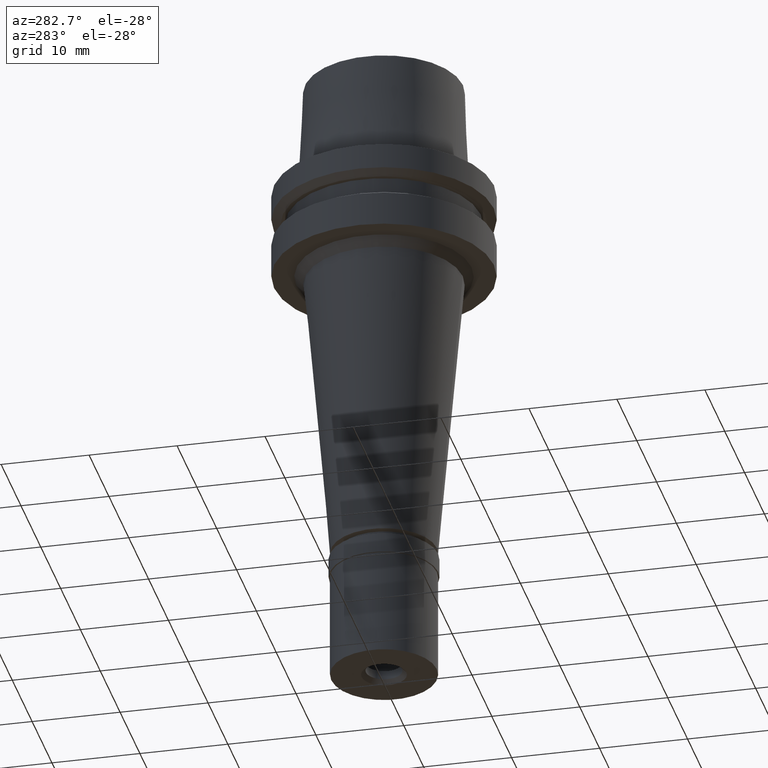
[diagram: clean part render]
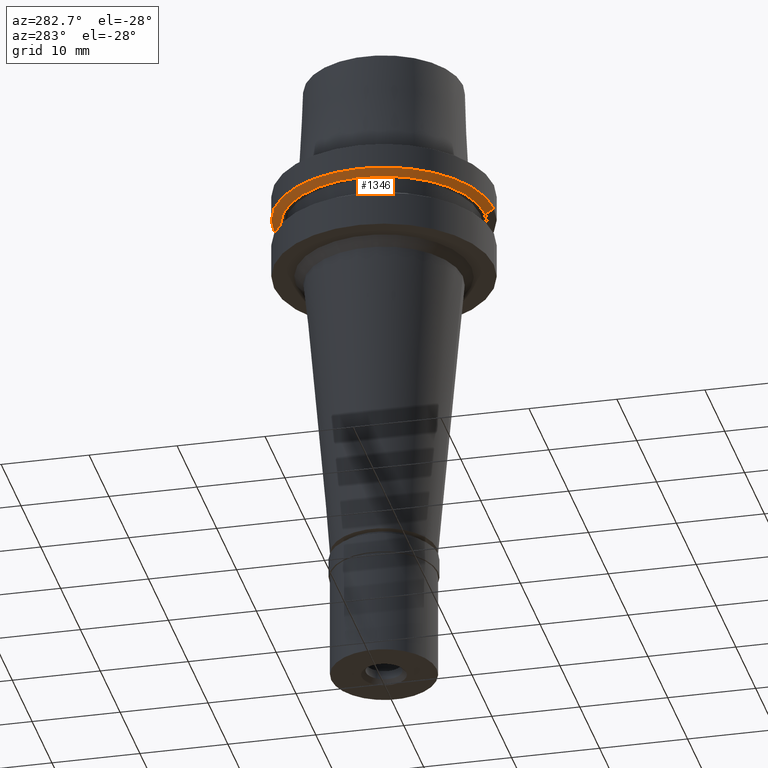
[diagram: same view with one face highlighted and labeled with its STEP entity id]
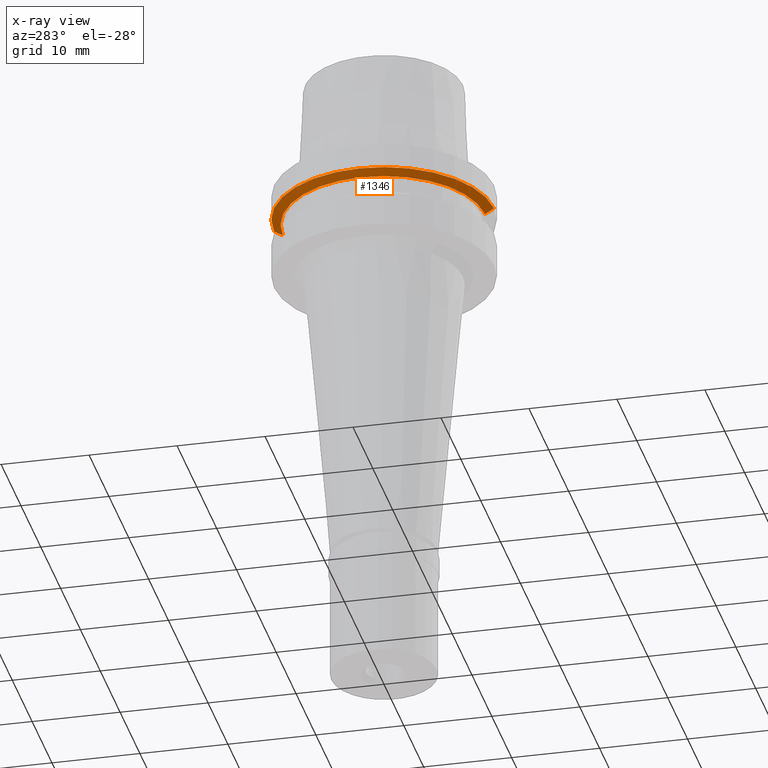
[diagram: x-ray of the same camera — body ghosted, the highlighted face saturated]
A machine part, auxiliary view. The second image highlights one B-rep face of the part: STEP entity #1346.
The next image is the same camera in x-ray: the body ghosted, the highlighted face saturated — about 0% of this face is hidden behind the body in this view.
In plain terms, the highlighted conical surface has half-angle 60 deg.
Its self-contained STEP definition (entity closure, byte-faithful):
#23 = DIRECTION ( 'NONE',  ( 0.0000000000000000000, 0.0000000000000000000, 1.000000000000000000 ) ) ;
#149 = AXIS2_PLACEMENT_3D ( 'NONE', #2239, #814, #168 ) ;
#168 = DIRECTION ( 'NONE',  ( 0.0000000000000000000, 1.000000000000000000, 0.0000000000000000000 ) ) ;
#229 = EDGE_CURVE ( 'NONE', #1078, #1510, #1835, .T. ) ;
#235 = EDGE_CURVE ( 'NONE', #1078, #704, #1506, .T. ) ;
#273 = CARTESIAN_POINT ( 'NONE',  ( 0.0000000000000000000, 0.0000000000000000000, -2.912286759726999907 ) ) ;
#278 = CONICAL_SURFACE ( 'NONE', #149, 11.99102540378000192, 1.047197551196400456 ) ;
#331 = DIRECTION ( 'NONE',  ( 0.0000000000000000000, 1.000000000000000000, 0.0000000000000000000 ) ) ;
#342 = VERTEX_POINT ( 'NONE', #955 ) ;
#395 = CARTESIAN_POINT ( 'NONE',  ( 0.0000000000000000000, -12.50000000000000000, -2.912286759727999996 ) ) ;
#443 = CARTESIAN_POINT ( 'NONE',  ( 0.0000000000000000000, -12.50000000000000000, -2.912286759727999996 ) ) ;
#588 = DIRECTION ( 'NONE',  ( 0.0000000000000000000, 0.0000000000000000000, 1.000000000000000000 ) ) ;
#622 = FACE_OUTER_BOUND ( 'NONE', #1822, .T. ) ;
#693 = CARTESIAN_POINT ( 'NONE',  ( 0.0000000000000000000, 12.50000000000000000, -2.912286759727999996 ) ) ;
#704 = VERTEX_POINT ( 'NONE', #1140 ) ;
#807 = ORIENTED_EDGE ( 'NONE', *, *, #235, .T. ) ;
#814 = DIRECTION ( 'NONE',  ( 0.0000000000000000000, 0.0000000000000000000, 1.000000000000000000 ) ) ;
#955 = CARTESIAN_POINT ( 'NONE',  ( 0.0000000000000000000, -11.48205080757000118, -3.499999999997000177 ) ) ;
#1078 = VERTEX_POINT ( 'NONE', #693 ) ;
#1139 = ORIENTED_EDGE ( 'NONE', *, *, #229, .F. ) ;
#1140 = CARTESIAN_POINT ( 'NONE',  ( 0.0000000000000000000, 11.48205080757000118, -3.499999999997999822 ) ) ;
#1200 = CARTESIAN_POINT ( 'NONE',  ( 0.0000000000000000000, 0.0000000000000000000, -3.499999999997000177 ) ) ;
#1201 = AXIS2_PLACEMENT_3D ( 'NONE', #273, #23, #1516 ) ;
#1326 = EDGE_CURVE ( 'NONE', #1510, #342, #2428, .T. ) ;
#1335 = VECTOR ( 'NONE', #2260, 1000.000000000000114 ) ;
#1346 = ADVANCED_FACE ( 'NONE', ( #622 ), #278, .T. ) ;
#1488 = DIRECTION ( 'NONE',  ( 0.0000000000000000000, -0.8660254037846089048, -0.4999999999997049027 ) ) ;
#1506 = LINE ( 'NONE', #1691, #2012 ) ;
#1510 = VERTEX_POINT ( 'NONE', #443 ) ;
#1516 = DIRECTION ( 'NONE',  ( 0.0000000000000000000, 1.000000000000000000, 0.0000000000000000000 ) ) ;
#1691 = CARTESIAN_POINT ( 'NONE',  ( 0.0000000000000000000, 12.50000000000000000, -2.912286759727999996 ) ) ;
#1822 = EDGE_LOOP ( 'NONE', ( #2219, #2474, #1139, #807 ) ) ;
#1835 = CIRCLE ( 'NONE', #1201, 12.50000000000000000 ) ;
#1893 = CIRCLE ( 'NONE', #2207, 11.48205080757000118 ) ;
#2012 = VECTOR ( 'NONE', #1488, 1000.000000000000114 ) ;
#2068 = EDGE_CURVE ( 'NONE', #704, #342, #1893, .T. ) ;
#2207 = AXIS2_PLACEMENT_3D ( 'NONE', #1200, #588, #331 ) ;
#2219 = ORIENTED_EDGE ( 'NONE', *, *, #2068, .T. ) ;
#2239 = CARTESIAN_POINT ( 'NONE',  ( 0.0000000000000000000, 0.0000000000000000000, -3.206143379862000042 ) ) ;
#2260 = DIRECTION ( 'NONE',  ( 0.0000000000000000000, 0.8660254037846089048, -0.4999999999997049027 ) ) ;
#2428 = LINE ( 'NONE', #395, #1335 ) ;
#2474 = ORIENTED_EDGE ( 'NONE', *, *, #1326, .F. ) ;